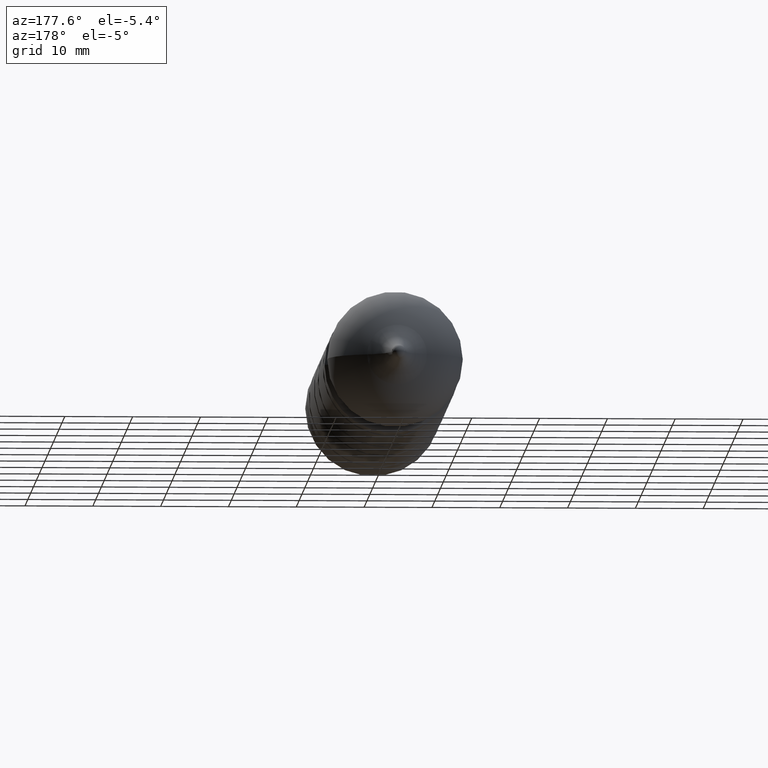
[diagram: clean part render]
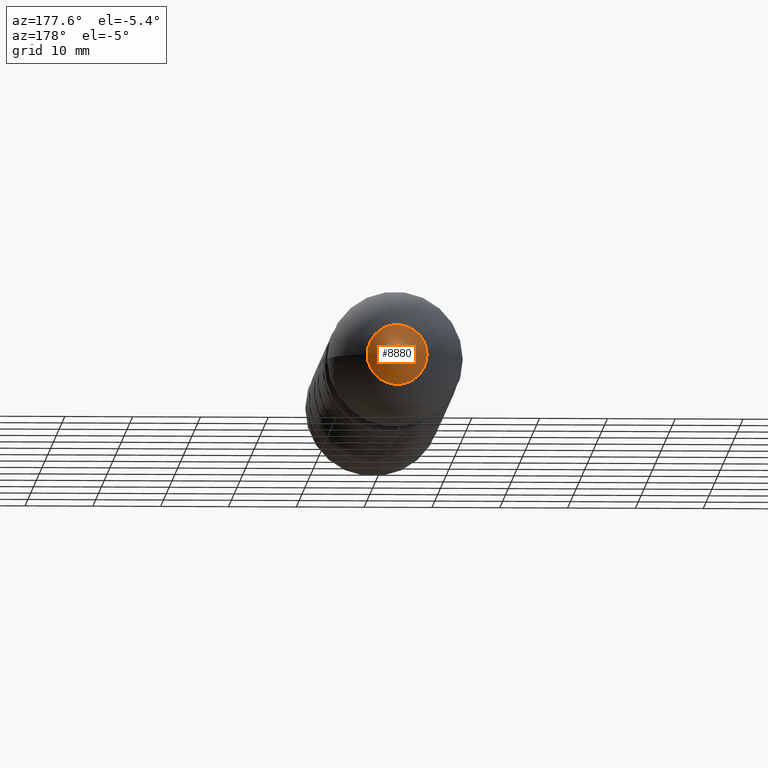
[diagram: same view with one face highlighted and labeled with its STEP entity id]
A machine part, auxiliary view. The second image highlights one B-rep face of the part: STEP entity #8880.
In plain terms, the highlighted toroidal blend (fillet) surface has major radius 6 mm and minor (blend) radius 5 mm.
Its self-contained STEP definition (entity closure, byte-faithful):
#11 = FACE_OUTER_BOUND ( 'NONE', #10797, .T. ) ;
#39 = EDGE_CURVE ( 'NONE', #2621, #2621, #306, .T. ) ;
#306 = CIRCLE ( 'NONE', #7078, 1.000000000000009104 ) ;
#1879 = CARTESIAN_POINT ( 'NONE',  ( -4.406753982503382794, -46.26063642165625822, 1.710619102672877920E-30 ) ) ;
#2272 = DIRECTION ( 'NONE',  ( -1.000000000000000000, 0.000000000000000000, 0.000000000000000000 ) ) ;
#2621 = VERTEX_POINT ( 'NONE', #3848 ) ;
#3300 = CARTESIAN_POINT ( 'NONE',  ( -1.482030194222403544E-15, -51.00000000000000000, 1.885870601543991507E-30 ) ) ;
#3848 = CARTESIAN_POINT ( 'NONE',  ( -1.000000000000010658, -51.00000000000000000, 1.885870601543991507E-30 ) ) ;
#4150 = DIRECTION ( 'NONE',  ( -1.000000000000000000, 2.905941557298832194E-17, -1.074554853473496025E-48 ) ) ;
#4334 = TOROIDAL_SURFACE ( 'NONE', #8008, 6.000000000000003553, 5.000000000000000888 ) ;
#5843 = VERTEX_POINT ( 'NONE', #1879 ) ;
#6118 = CARTESIAN_POINT ( 'NONE',  ( -1.734723475976820899E-15, -50.99999999999999289, 1.885870601543990456E-30 ) ) ;
#6318 = DIRECTION ( 'NONE',  ( -1.000000000000000000, 0.000000000000000000, 0.000000000000000000 ) ) ;
#7078 = AXIS2_PLACEMENT_3D ( 'NONE', #3300, #8142, #2272 ) ;
#7693 = AXIS2_PLACEMENT_3D ( 'NONE', #11235, #12175, #6318 ) ;
#8008 = AXIS2_PLACEMENT_3D ( 'NONE', #6118, #9949, #4150 ) ;
#8142 = DIRECTION ( 'NONE',  ( 2.905941557298832194E-17, 1.000000000000000000, -3.697785493223511449E-32 ) ) ;
#8676 = CIRCLE ( 'NONE', #7693, 4.406753982503381017 ) ;
#8880 = ADVANCED_FACE ( 'NONE', ( #11834, #11 ), #4334, .F. ) ;
#9199 = ORIENTED_EDGE ( 'NONE', *, *, #39, .T. ) ;
#9949 = DIRECTION ( 'NONE',  ( 2.905941557298832194E-17, 1.000000000000000000, -3.697785493223511449E-32 ) ) ;
#10333 = ORIENTED_EDGE ( 'NONE', *, *, #11756, .F. ) ;
#10797 = EDGE_LOOP ( 'NONE', ( #9199 ) ) ;
#11235 = CARTESIAN_POINT ( 'NONE',  ( -1.344307058447831449E-15, -46.26063642165625822, 1.710619102672877920E-30 ) ) ;
#11753 = EDGE_LOOP ( 'NONE', ( #10333 ) ) ;
#11756 = EDGE_CURVE ( 'NONE', #5843, #5843, #8676, .T. ) ;
#11834 = FACE_OUTER_BOUND ( 'NONE', #11753, .T. ) ;
#12175 = DIRECTION ( 'NONE',  ( 2.905941557298832194E-17, 1.000000000000000000, -3.697785493223511449E-32 ) ) ;